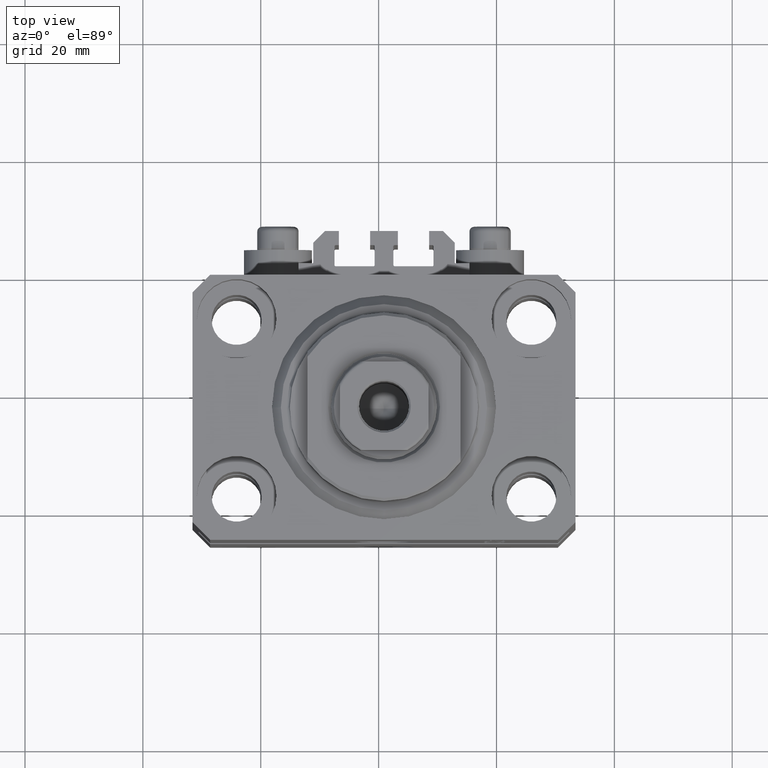
[diagram: clean part render]
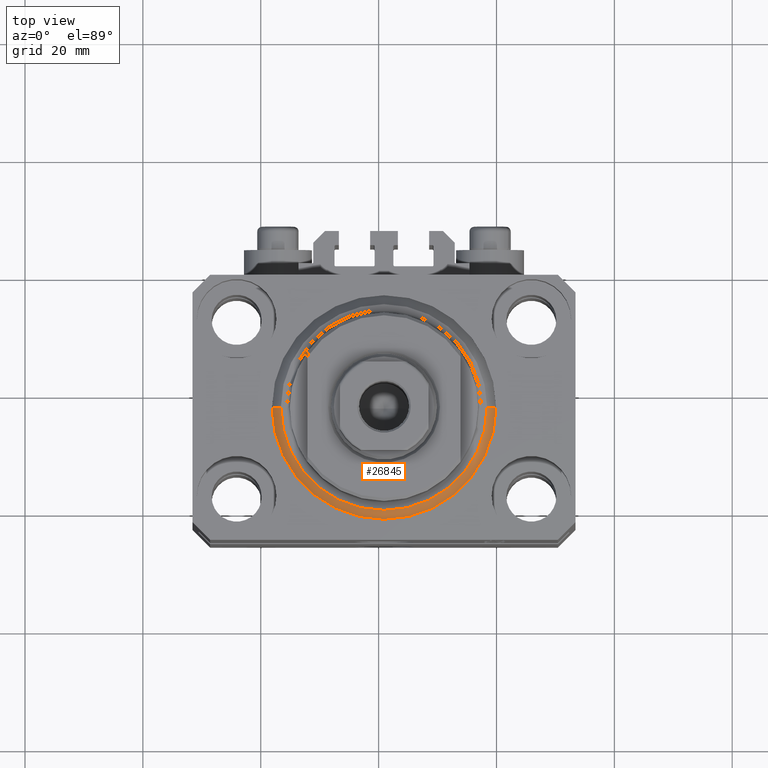
[diagram: same view with one face highlighted and labeled with its STEP entity id]
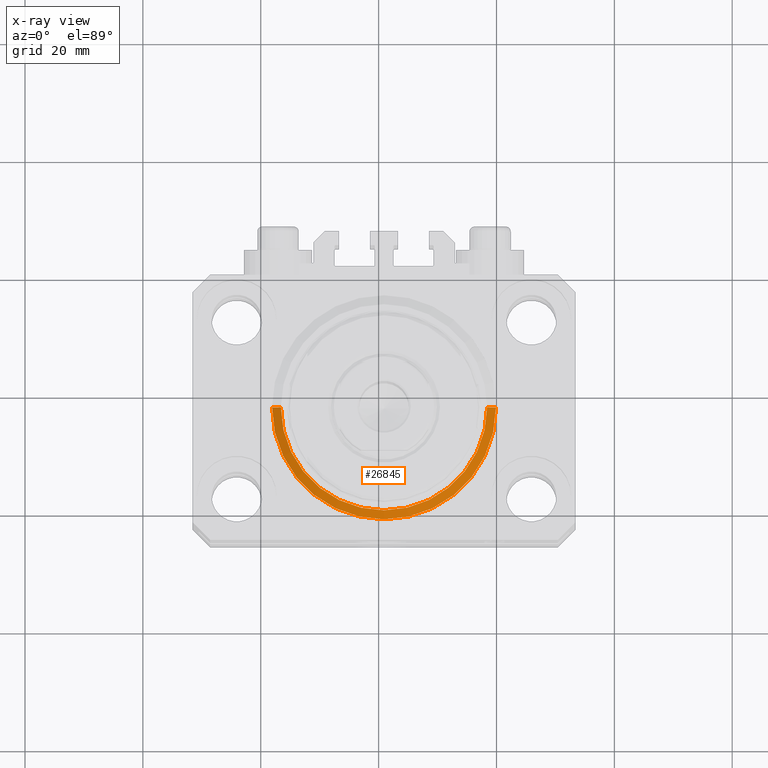
[diagram: x-ray of the same camera — body ghosted, the highlighted face saturated]
A machine part, top view. The second image highlights one B-rep face of the part: STEP entity #26845.
The next image is the same camera in x-ray: the body ghosted, the highlighted face saturated — about 0% of this face is hidden behind the body in this view.
In plain terms, the highlighted conical surface has half-angle 45 deg.
Its self-contained STEP definition (entity closure, byte-faithful):
#1768 = CARTESIAN_POINT ( 'NONE',  ( -17.49999999999999645, 2.234980408443919215E-15, 0.000000000000000000 ) ) ;
#3895 = CONICAL_SURFACE ( 'NONE', #24681, 19.00000000000000000, 0.7853981633974492782 ) ;
#4412 = CIRCLE ( 'NONE', #24441, 19.00000000000000000 ) ;
#7485 = DIRECTION ( 'NONE',  ( 1.000000000000000000, 0.000000000000000000, 0.000000000000000000 ) ) ;
#9864 = CARTESIAN_POINT ( 'NONE',  ( -19.00000000000000000, 0.000000000000000000, 1.500000000000001332 ) ) ;
#10208 = EDGE_LOOP ( 'NONE', ( #29654, #36278, #20205, #25015 ) ) ;
#14133 = FACE_OUTER_BOUND ( 'NONE', #10208, .T. ) ;
#14214 = VECTOR ( 'NONE', #20071, 1000.000000000000000 ) ;
#14724 = CARTESIAN_POINT ( 'NONE',  ( 0.000000000000000000, 0.000000000000000000, 0.000000000000000000 ) ) ;
#15934 = CIRCLE ( 'NONE', #22096, 17.49999999999999645 ) ;
#18094 = VERTEX_POINT ( 'NONE', #32250 ) ;
#18520 = DIRECTION ( 'NONE',  ( 1.000000000000000000, 0.000000000000000000, 0.000000000000000000 ) ) ;
#19270 = EDGE_CURVE ( 'NONE', #28990, #18094, #4412, .T. ) ;
#20071 = DIRECTION ( 'NONE',  ( -0.7071067811865483499, 8.659560562354942719E-17, 0.7071067811865467956 ) ) ;
#20205 = ORIENTED_EDGE ( 'NONE', *, *, #47615, .T. ) ;
#21372 = DIRECTION ( 'NONE',  ( -0.000000000000000000, -0.000000000000000000, 1.000000000000000000 ) ) ;
#22096 = AXIS2_PLACEMENT_3D ( 'NONE', #14724, #36898, #7485 ) ;
#23453 = LINE ( 'NONE', #38421, #14214 ) ;
#24088 = DIRECTION ( 'NONE',  ( 1.000000000000000000, 0.000000000000000000, 0.000000000000000000 ) ) ;
#24441 = AXIS2_PLACEMENT_3D ( 'NONE', #29836, #43876, #18520 ) ;
#24681 = AXIS2_PLACEMENT_3D ( 'NONE', #46967, #21372, #24088 ) ;
#25015 = ORIENTED_EDGE ( 'NONE', *, *, #19270, .F. ) ;
#26845 = ADVANCED_FACE ( 'NONE', ( #14133 ), #3895, .T. ) ;
#28990 = VERTEX_POINT ( 'NONE', #9864 ) ;
#29654 = ORIENTED_EDGE ( 'NONE', *, *, #37189, .F. ) ;
#29836 = CARTESIAN_POINT ( 'NONE',  ( 0.000000000000000000, 0.000000000000000000, 1.500000000000001332 ) ) ;
#30413 = VERTEX_POINT ( 'NONE', #34825 ) ;
#32250 = CARTESIAN_POINT ( 'NONE',  ( 19.00000000000000000, 2.326828918379970970E-15, 1.500000000000001332 ) ) ;
#34825 = CARTESIAN_POINT ( 'NONE',  ( 17.49999999999999645, 0.000000000000000000, 0.000000000000000000 ) ) ;
#34906 = CARTESIAN_POINT ( 'NONE',  ( 19.00000000000000000, 0.000000000000000000, 1.500000000000001332 ) ) ;
#35350 = VECTOR ( 'NONE', #38547, 1000.000000000000000 ) ;
#36278 = ORIENTED_EDGE ( 'NONE', *, *, #43261, .F. ) ;
#36898 = DIRECTION ( 'NONE',  ( -0.000000000000000000, -0.000000000000000000, -1.000000000000000000 ) ) ;
#37189 = EDGE_CURVE ( 'NONE', #39575, #28990, #23453, .T. ) ;
#38421 = CARTESIAN_POINT ( 'NONE',  ( -19.00000000000000000, 2.326828918379970970E-15, 1.500000000000001332 ) ) ;
#38547 = DIRECTION ( 'NONE',  ( 0.7071067811865483499, 0.000000000000000000, 0.7071067811865467956 ) ) ;
#39575 = VERTEX_POINT ( 'NONE', #1768 ) ;
#42159 = LINE ( 'NONE', #34906, #35350 ) ;
#43261 = EDGE_CURVE ( 'NONE', #30413, #39575, #15934, .T. ) ;
#43876 = DIRECTION ( 'NONE',  ( -0.000000000000000000, -0.000000000000000000, 1.000000000000000000 ) ) ;
#46967 = CARTESIAN_POINT ( 'NONE',  ( 0.000000000000000000, 0.000000000000000000, 1.500000000000001332 ) ) ;
#47615 = EDGE_CURVE ( 'NONE', #30413, #18094, #42159, .T. ) ;